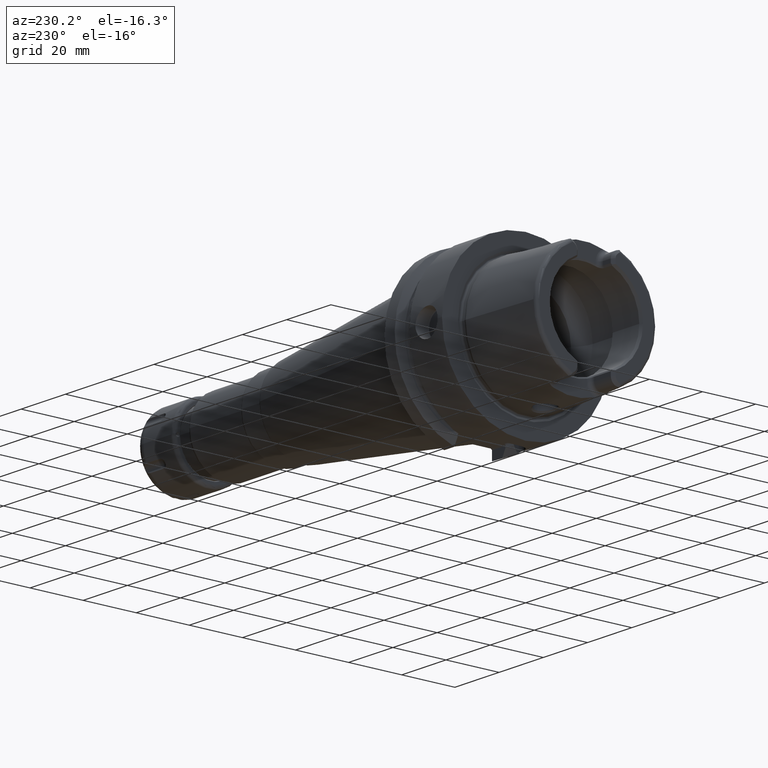
[diagram: clean part render]
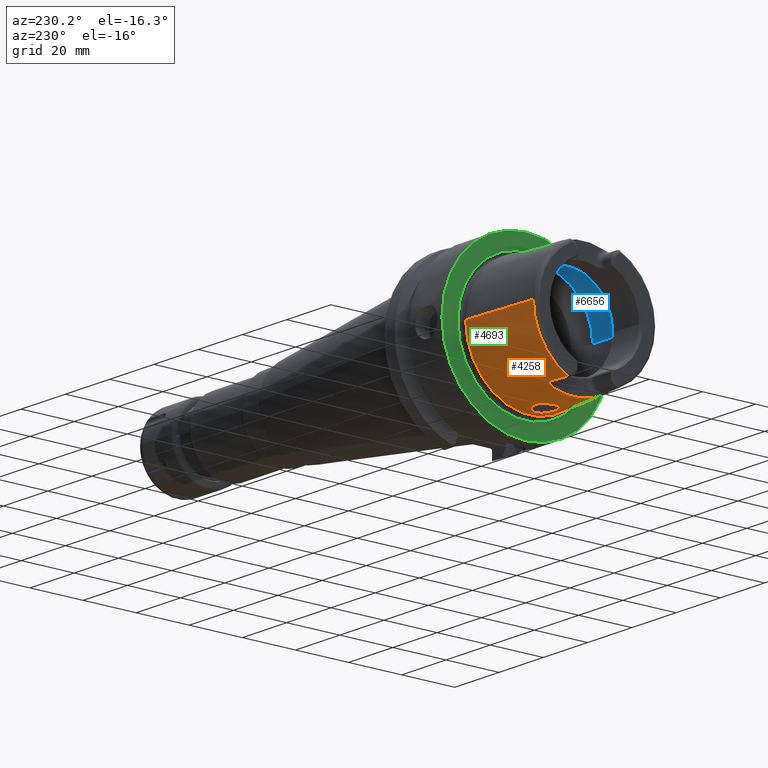
[diagram: same view with three faces highlighted in distinct colors, each labeled with its STEP entity id]
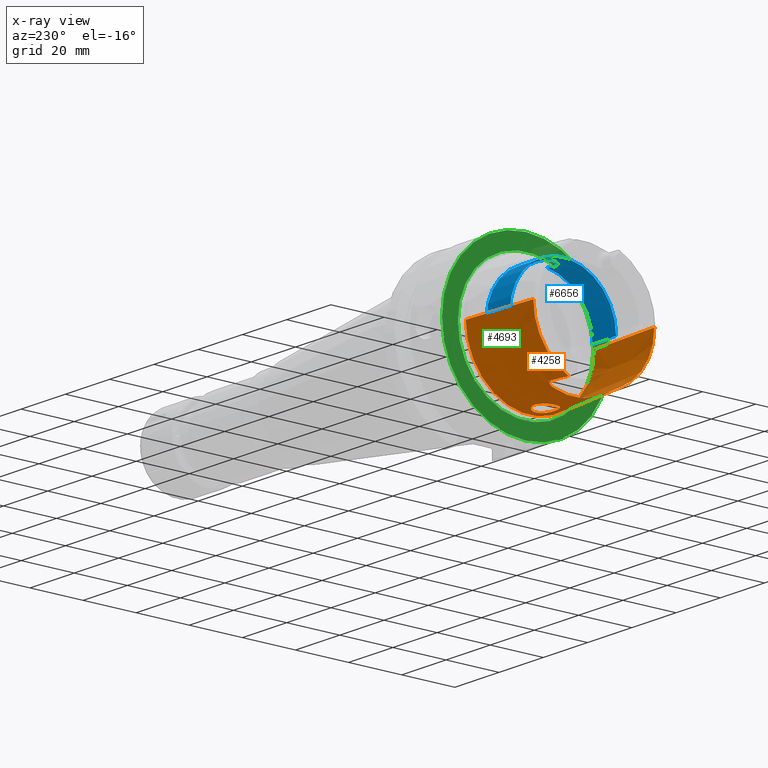
[diagram: x-ray of the same camera — body ghosted, the three highlighted faces saturated]
A machine part, auxiliary view with three faces highlighted in distinct colors.
The next image is the same camera in x-ray (body ghosted, the three faces saturated) — at least one of them is partly hidden behind the body in this view.
Their STEP definitions:

[orange] entity #4258 — the highlighted conical surface has half-angle 2.868 deg.
#172=CARTESIAN_POINT('',(-3.086004306431E1,9.562027931336E0,-2.067E1));
#180=CARTESIAN_POINT('',(-3.086004306431E1,0.E0,0.E0));
#181=DIRECTION('',(-1.E0,0.E0,0.E0));
#182=DIRECTION('',(0.E0,1.E0,0.E0));
#183=AXIS2_PLACEMENT_3D('',#180,#181,#182);
#266=CARTESIAN_POINT('',(-3.086004306431E1,0.E0,0.E0));
#267=DIRECTION('',(-1.E0,0.E0,0.E0));
#268=DIRECTION('',(0.E0,-4.198553792210E-1,-9.075910205259E-1));
#269=AXIS2_PLACEMENT_3D('',#266,#267,#268);
#715=CARTESIAN_POINT('',(-2.35E1,-1.040978349090E1,-2.067E1));
#716=CARTESIAN_POINT('',(-2.344355022851E1,-1.041607090076E1,-2.067E1));
#717=CARTESIAN_POINT('',(-2.332956993861E1,-1.041630964332E1,
-2.067627649687E1));
#718=CARTESIAN_POINT('',(-2.315431779142E1,-1.037517685704E1,
-2.070680447798E1));
#719=CARTESIAN_POINT('',(-2.298610382819E1,-1.029332142770E1,
-2.075709446100E1));
#720=CARTESIAN_POINT('',(-2.282168004898E1,-1.016791062235E1,
-2.082809580409E1));
#721=CARTESIAN_POINT('',(-2.266724538325E1,-9.999284585470E0,
-2.091827708343E1));
#722=CARTESIAN_POINT('',(-2.252949651780E1,-9.795860386621E0,
-2.102205159226E1));
#723=CARTESIAN_POINT('',(-2.240609239614E1,-9.556317791147E0,
-2.113897791639E1));
#724=CARTESIAN_POINT('',(-2.233295118151E1,-9.369771312934E0,
-2.122596447282E1));
#725=CARTESIAN_POINT('',(-2.229902715702E1,-9.27E0,-2.127129858661E1));
#732=CARTESIAN_POINT('',(-2.229902715702E1,-9.27E0,-2.127129858661E1));
#733=CARTESIAN_POINT('',(-2.223399395074E1,-9.078735889296E0,
-2.135820522042E1));
#734=CARTESIAN_POINT('',(-2.212138063131E1,-8.709703982970E0,
-2.151897497246E1));
#735=CARTESIAN_POINT('',(-2.202143095510E1,-8.195867731278E0,
-2.172483116732E1));
#736=CARTESIAN_POINT('',(-2.2E1,-7.876905772307E0,-2.184209600703E1));
#737=CARTESIAN_POINT('',(-2.2E1,-7.723914364163E0,-2.189606426911E1));
#744=CARTESIAN_POINT('',(-3.086004306431E1,9.562027931336E0,-2.067E1));
#745=CARTESIAN_POINT('',(-3.006933576531E1,9.656377942908E0,-2.067E1));
#746=CARTESIAN_POINT('',(-2.846987211493E1,9.844931102331E0,-2.067E1));
#747=CARTESIAN_POINT('',(-2.601704943476E1,1.012739619931E1,-2.067E1));
#748=CARTESIAN_POINT('',(-2.434508424921E1,1.031565749353E1,-2.067E1));
#749=CARTESIAN_POINT('',(-2.35E1,1.040978349090E1,-2.067E1));
#751=CARTESIAN_POINT('',(-2.2E1,0.E0,0.E0));
#752=DIRECTION('',(1.E0,0.E0,0.E0));
#753=DIRECTION('',(0.E0,-3.326627708379E-1,-9.430458530201E-1));
#754=AXIS2_PLACEMENT_3D('',#751,#752,#753);
#756=CARTESIAN_POINT('',(-2.35E1,-1.040978349090E1,-2.067E1));
#757=CARTESIAN_POINT('',(-2.434499363207E1,-1.031566758652E1,-2.067E1));
#758=CARTESIAN_POINT('',(-2.601683809497E1,-1.012742018211E1,-2.067E1));
#759=CARTESIAN_POINT('',(-2.846966522954E1,-9.844955281726E0,-2.067E1));
#760=CARTESIAN_POINT('',(-3.006924714753E1,-9.656388517097E0,-2.067E1));
#761=CARTESIAN_POINT('',(-3.086004306431E1,-9.562027931336E0,-2.067E1));
#763=DIRECTION('',(-9.987474205320E-1,5.003588692862E-2,0.E0));
#764=VECTOR('',#763,2.889623789861E1);
#765=CARTESIAN_POINT('',(-2.E0,-2.422042414966E1,0.E0));
#766=LINE('',#765,#764);
#767=CARTESIAN_POINT('',(-2.E0,0.E0,0.E0));
#768=DIRECTION('',(1.E0,0.E0,0.E0));
#769=DIRECTION('',(0.E0,-1.E0,0.E0));
#770=AXIS2_PLACEMENT_3D('',#767,#768,#769);
#772=DIRECTION('',(-9.987474205320E-1,-5.003588692862E-2,0.E0));
#773=VECTOR('',#772,2.889623789861E1);
#774=CARTESIAN_POINT('',(-2.E0,2.422042414966E1,0.E0));
#775=LINE('',#774,#773);
#776=CARTESIAN_POINT('',(-4.750586214018E0,5.673461659763E-9,
-2.408258339423E1));
#777=CARTESIAN_POINT('',(-4.750477437961E0,2.111411076152E-1,
-2.408258884376E1));
#778=CARTESIAN_POINT('',(-4.781495656806E0,6.343409338442E-1,
-2.407562144168E1));
#779=CARTESIAN_POINT('',(-4.930078657106E0,1.283914855647E0,-2.404224907910E1));
#780=CARTESIAN_POINT('',(-5.182634392381E0,1.908800454949E0,-2.398769888200E1));
#781=CARTESIAN_POINT('',(-5.529831450162E0,2.484539069761E0,-2.391697022480E1));
#782=CARTESIAN_POINT('',(-5.960551469368E0,2.995586150016E0,-2.383614077825E1));
#783=CARTESIAN_POINT('',(-6.473793439058E0,3.438507792172E0,-2.374982588457E1));
#784=CARTESIAN_POINT('',(-7.048787066123E0,3.792204015972E0,-2.366626747645E1));
#785=CARTESIAN_POINT('',(-7.671452269175E0,4.050490920343E0,-2.359141310307E1));
#786=CARTESIAN_POINT('',(-8.326498075054E0,4.207389863949E0,-2.353035449331E1));
#787=CARTESIAN_POINT('',(-8.996688113385E0,4.259622037115E0,-2.348674331493E1));
#788=CARTESIAN_POINT('',(-9.664449704733E0,4.206963769363E0,-2.346231724919E1));
#789=CARTESIAN_POINT('',(-1.031524077611E1,4.051442761029E0,-2.345681057565E1));
#790=CARTESIAN_POINT('',(-1.093485325951E1,3.796098039719E0,-2.346839797168E1));
#791=CARTESIAN_POINT('',(-1.150677686976E1,3.447081430360E0,-2.349368587605E1));
#792=CARTESIAN_POINT('',(-1.201610511114E1,3.013688514077E0,-2.352797212386E1));
#793=CARTESIAN_POINT('',(-1.245275273991E1,2.504280742997E0,-2.356616658718E1));
#794=CARTESIAN_POINT('',(-1.280634613041E1,1.927107192660E0,-2.360307496745E1));
#795=CARTESIAN_POINT('',(-1.306351718265E1,1.301776136825E0,-2.363325793045E1));
#796=CARTESIAN_POINT('',(-1.321667495617E1,6.483699009348E-1,
-2.365261938940E1));
#797=CARTESIAN_POINT('',(-1.324953338827E1,2.167159282651E-1,
-2.365680321669E1));
#798=CARTESIAN_POINT('',(-1.324940828071E1,6.149879737228E-9,
-2.365680948441E1));
#800=CARTESIAN_POINT('',(-1.324940828071E1,6.149879737228E-9,
-2.365680948441E1));
#801=CARTESIAN_POINT('',(-1.324953102801E1,-2.137481481882E-1,
-2.365680333493E1));
#802=CARTESIAN_POINT('',(-1.321763433537E1,-6.412975014817E-1,
-2.365274945467E1));
#803=CARTESIAN_POINT('',(-1.306535183772E1,-1.296633810944E0,
-2.363348136753E1));
#804=CARTESIAN_POINT('',(-1.280777805154E1,-1.924231879999E0,
-2.360323471178E1));
#805=CARTESIAN_POINT('',(-1.245640925213E1,-2.498853587660E0,
-2.356653312143E1));
#806=CARTESIAN_POINT('',(-1.202279775894E1,-3.007095564138E0,
-2.352849478770E1));
#807=CARTESIAN_POINT('',(-1.151012912941E1,-3.444950000041E0,
-2.349384632376E1));
#808=CARTESIAN_POINT('',(-1.093833543731E1,-3.794219313343E0,
-2.346852201482E1));
#809=CARTESIAN_POINT('',(-1.031975853695E1,-4.049996047184E0,
-2.345683414568E1));
#810=CARTESIAN_POINT('',(-9.668027880621E0,-4.206485188960E0,
-2.346222186835E1));
#811=CARTESIAN_POINT('',(-8.998732245580E0,-4.259676561364E0,
-2.348662929012E1));
#812=CARTESIAN_POINT('',(-8.327946517995E0,-4.207637743620E0,
-2.353023608986E1));
#813=CARTESIAN_POINT('',(-7.672280726344E0,-4.050816496641E0,
-2.359131552533E1));
#814=CARTESIAN_POINT('',(-7.048298445734E0,-3.792045808672E0,
-2.366632099982E1));
#815=CARTESIAN_POINT('',(-6.472887987830E0,-3.437795786313E0,
-2.374997505426E1));
#816=CARTESIAN_POINT('',(-5.960766318899E0,-2.995689730409E0,
-2.383610614678E1));
#817=CARTESIAN_POINT('',(-5.531187494687E0,-2.486290041474E0,
-2.391671147691E1));
#818=CARTESIAN_POINT('',(-5.183401261358E0,-1.910526594455E0,
-2.398753185570E1));
#819=CARTESIAN_POINT('',(-4.929997199649E0,-1.284003067748E0,
-2.404226458263E1));
#820=CARTESIAN_POINT('',(-4.781340780308E0,-6.332209723674E-1,
-2.407566103624E1));
#821=CARTESIAN_POINT('',(-4.750402434471E0,-2.105981632370E-1,
-2.408259260134E1));
#822=CARTESIAN_POINT('',(-4.750586214018E0,5.673461659763E-9,
-2.408258339423E1));
#832=CARTESIAN_POINT('',(-2.229902715702E1,9.27E0,-2.127129858661E1));
#833=CARTESIAN_POINT('',(-2.233311157770E1,9.370243041714E0,-2.122575012858E1));
#834=CARTESIAN_POINT('',(-2.240658425841E1,9.557497215840E0,-2.113842140416E1));
#835=CARTESIAN_POINT('',(-2.253041527230E1,9.797438074146E0,-2.102126542838E1));
#836=CARTESIAN_POINT('',(-2.266830373788E1,1.000064778809E1,-2.091756656395E1));
#837=CARTESIAN_POINT('',(-2.282373330426E1,1.017005110462E1,-2.082694270310E1));
#838=CARTESIAN_POINT('',(-2.299261366970E1,1.029790438197E1,-2.075446014923E1));
#839=CARTESIAN_POINT('',(-2.316533457542E1,1.037882348161E1,-2.070435505978E1));
#840=CARTESIAN_POINT('',(-2.333269177476E1,1.041609135758E1,-2.067621009348E1));
#841=CARTESIAN_POINT('',(-2.344467268621E1,1.041594588074E1,-2.067E1));
#842=CARTESIAN_POINT('',(-2.35E1,1.040978349090E1,-2.067E1));
#844=CARTESIAN_POINT('',(-2.2E1,7.723914364163E0,-2.189606426911E1));
#845=CARTESIAN_POINT('',(-2.2E1,7.876901135824E0,-2.184209764257E1));
#846=CARTESIAN_POINT('',(-2.202143124879E1,8.195856320393E0,-2.172483505793E1));
#847=CARTESIAN_POINT('',(-2.212136508173E1,8.709641843939E0,-2.151900085185E1));
#848=CARTESIAN_POINT('',(-2.223398514363E1,9.078709987396E0,-2.135821698973E1));
#849=CARTESIAN_POINT('',(-2.229902715702E1,9.27E0,-2.127129858661E1));
#2917=CARTESIAN_POINT('',(-2.E0,2.422042414966E1,0.E0));
#2918=CARTESIAN_POINT('',(-2.E0,-2.422042414966E1,0.E0));
#2919=VERTEX_POINT('',#2917);
#2920=VERTEX_POINT('',#2918);
#2921=CARTESIAN_POINT('',(-3.086004306431E1,2.277457525750E1,0.E0));
#2922=VERTEX_POINT('',#2921);
#2923=CARTESIAN_POINT('',(-3.086004306431E1,-2.277457525750E1,0.E0));
#2924=VERTEX_POINT('',#2923);
#3042=VERTEX_POINT('',#172);
#3044=CARTESIAN_POINT('',(-3.086004306431E1,-9.562027931336E0,-2.067E1));
#3045=VERTEX_POINT('',#3044);
#3048=CARTESIAN_POINT('',(-2.229902715702E1,-9.27E0,-2.127129858661E1));
#3050=VERTEX_POINT('',#3048);
#3051=VERTEX_POINT('',#737);
#3052=VERTEX_POINT('',#844);
#3053=VERTEX_POINT('',#849);
#3064=CARTESIAN_POINT('',(-2.35E1,-1.040978349090E1,-2.067E1));
#3065=VERTEX_POINT('',#3064);
#3066=CARTESIAN_POINT('',(-2.35E1,1.040978349090E1,-2.067E1));
#3067=VERTEX_POINT('',#3066);
#3132=VERTEX_POINT('',#776);
#3133=VERTEX_POINT('',#798);
#4228=CARTESIAN_POINT('',(-1.643002153216E1,0.E0,0.E0));
#4229=DIRECTION('',(1.E0,0.E0,0.E0));
#4230=DIRECTION('',(0.E0,-1.E0,0.E0));
#4231=AXIS2_PLACEMENT_3D('',#4228,#4229,#4230);
#4232=CONICAL_SURFACE('',#4231,2.349749970358E1,2.868042729042E0);
#4234=ORIENTED_EDGE('',*,*,#4233,.T.);
#4236=ORIENTED_EDGE('',*,*,#4235,.F.);
#4238=ORIENTED_EDGE('',*,*,#4237,.F.);
#4240=ORIENTED_EDGE('',*,*,#4239,.F.);
#4241=ORIENTED_EDGE('',*,*,#4218,.F.);
#4242=ORIENTED_EDGE('',*,*,#4207,.F.);
#4243=ORIENTED_EDGE('',*,*,#4194,.T.);
#4244=ORIENTED_EDGE('',*,*,#3597,.T.);
#4245=ORIENTED_EDGE('',*,*,#3455,.F.);
#4247=ORIENTED_EDGE('',*,*,#4246,.T.);
#4248=ORIENTED_EDGE('',*,*,#3451,.T.);
#4249=ORIENTED_EDGE('',*,*,#3569,.T.);
#4250=EDGE_LOOP('',(#4234,#4236,#4238,#4240,#4241,#4242,#4243,#4244,#4245,#4247,
#4248,#4249));
#4251=FACE_OUTER_BOUND('',#4250,.F.);
#4253=ORIENTED_EDGE('',*,*,#4252,.F.);
#4255=ORIENTED_EDGE('',*,*,#4254,.F.);
#4256=EDGE_LOOP('',(#4253,#4255));
#4257=FACE_BOUND('',#4256,.F.);
#4258=ADVANCED_FACE('',(#4251,#4257),#4232,.T.);
#184=CIRCLE('',#183,2.277457525750E1);
#270=CIRCLE('',#269,2.277457525750E1);
#726=B_SPLINE_CURVE_WITH_KNOTS('',3,(#715,#716,#717,#718,#719,#720,#721,#722,
#723,#724,#725),.UNSPECIFIED.,.F.,.F.,(4,1,1,1,1,1,1,1,4),(0.E0,1.25E-1,2.5E-1,
3.75E-1,5.E-1,6.25E-1,7.5E-1,8.75E-1,1.E0),.UNSPECIFIED.);
#738=B_SPLINE_CURVE_WITH_KNOTS('',3,(#732,#733,#734,#735,#736,#737),
.UNSPECIFIED.,.F.,.F.,(4,1,1,4),(0.E0,3.333333333333E-1,6.666666666667E-1,1.E0),
.UNSPECIFIED.);
#750=B_SPLINE_CURVE_WITH_KNOTS('',3,(#744,#745,#746,#747,#748,#749),
.UNSPECIFIED.,.F.,.F.,(4,1,1,4),(0.E0,3.333333333333E-1,6.666666666667E-1,1.E0),
.UNSPECIFIED.);
#755=CIRCLE('',#754,2.321845136054E1);
#762=B_SPLINE_CURVE_WITH_KNOTS('',3,(#756,#757,#758,#759,#760,#761),
.UNSPECIFIED.,.F.,.F.,(4,1,1,4),(0.E0,3.333333333333E-1,6.666666666667E-1,1.E0),
.UNSPECIFIED.);
#771=CIRCLE('',#770,2.422042414966E1);
#799=B_SPLINE_CURVE_WITH_KNOTS('',3,(#776,#777,#778,#779,#780,#781,#782,#783,
#784,#785,#786,#787,#788,#789,#790,#791,#792,#793,#794,#795,#796,#797,#798),
.UNSPECIFIED.,.F.,.F.,(4,1,1,1,1,1,1,1,1,1,1,1,1,1,1,1,1,1,1,1,4),(0.E0,5.E-2,
1.E-1,1.5E-1,2.E-1,2.5E-1,3.E-1,3.5E-1,4.E-1,4.5E-1,5.E-1,5.5E-1,6.E-1,6.5E-1,
7.E-1,7.5E-1,8.E-1,8.5E-1,9.E-1,9.5E-1,1.E0),.UNSPECIFIED.);
#823=B_SPLINE_CURVE_WITH_KNOTS('',3,(#800,#801,#802,#803,#804,#805,#806,#807,
#808,#809,#810,#811,#812,#813,#814,#815,#816,#817,#818,#819,#820,#821,#822),
.UNSPECIFIED.,.F.,.F.,(4,1,1,1,1,1,1,1,1,1,1,1,1,1,1,1,1,1,1,1,4),(0.E0,5.E-2,
1.E-1,1.5E-1,2.E-1,2.5E-1,3.E-1,3.5E-1,4.E-1,4.5E-1,5.E-1,5.5E-1,6.E-1,6.5E-1,
7.E-1,7.5E-1,8.E-1,8.5E-1,9.E-1,9.5E-1,1.E0),.UNSPECIFIED.);
#843=B_SPLINE_CURVE_WITH_KNOTS('',3,(#832,#833,#834,#835,#836,#837,#838,#839,
#840,#841,#842),.UNSPECIFIED.,.F.,.F.,(4,1,1,1,1,1,1,1,4),(0.E0,1.25E-1,2.5E-1,
3.75E-1,5.E-1,6.25E-1,7.5E-1,8.75E-1,1.E0),.UNSPECIFIED.);
#850=B_SPLINE_CURVE_WITH_KNOTS('',3,(#844,#845,#846,#847,#848,#849),
.UNSPECIFIED.,.F.,.F.,(4,1,1,4),(0.E0,3.333333333333E-1,6.666666666667E-1,1.E0),
.UNSPECIFIED.);
#3451=EDGE_CURVE('',#2919,#2922,#775,.T.);
#3455=EDGE_CURVE('',#2920,#2924,#766,.T.);
#3569=EDGE_CURVE('',#2922,#3042,#184,.T.);
#3597=EDGE_CURVE('',#3045,#2924,#270,.T.);
#4194=EDGE_CURVE('',#3065,#3045,#762,.T.);
#4207=EDGE_CURVE('',#3065,#3050,#726,.T.);
#4218=EDGE_CURVE('',#3050,#3051,#738,.T.);
#4233=EDGE_CURVE('',#3042,#3067,#750,.T.);
#4235=EDGE_CURVE('',#3053,#3067,#843,.T.);
#4237=EDGE_CURVE('',#3052,#3053,#850,.T.);
#4239=EDGE_CURVE('',#3051,#3052,#755,.T.);
#4246=EDGE_CURVE('',#2920,#2919,#771,.T.);
#4252=EDGE_CURVE('',#3132,#3133,#799,.T.);
#4254=EDGE_CURVE('',#3133,#3132,#823,.T.);

[blue] entity #6656 — the highlighted cylindrical surface (partial cylindrical patch) has radius 20 mm, axis along (1, 0, 0).
#2523=CARTESIAN_POINT('',(-6.344997998398E0,2.648294615690E0,1.982388800484E1));
#2525=CARTESIAN_POINT('',(-6.344997998398E0,-2.648294615690E0,
1.982388800484E1));
#2540=CARTESIAN_POINT('',(-6.344997998398E0,2.648294615690E0,1.982388800484E1));
#2541=CARTESIAN_POINT('',(-6.460596585787E0,2.764185981810E0,1.980840595204E1));
#2542=CARTESIAN_POINT('',(-6.705032526468E0,2.979236620594E0,1.977762997767E1));
#2543=CARTESIAN_POINT('',(-7.115707088008E0,3.254820950558E0,1.973390915713E1));
#2544=CARTESIAN_POINT('',(-7.558788067840E0,3.473550756710E0,1.969635481023E1));
#2545=CARTESIAN_POINT('',(-8.021221245910E0,3.630990626018E0,1.966777323779E1));
#2546=CARTESIAN_POINT('',(-8.506803393416E0,3.728808889512E0,1.964936004927E1));
#2547=CARTESIAN_POINT('',(-9.030555145845E0,3.763361449459E0,1.964272649975E1));
#2548=CARTESIAN_POINT('',(-9.606429583869E0,3.716513314942E0,1.965172145674E1));
#2549=CARTESIAN_POINT('',(-1.018737071400E1,3.573599882894E0,1.967844261791E1));
#2550=CARTESIAN_POINT('',(-1.073043578591E1,3.344031986540E0,1.971908086237E1));
#2551=CARTESIAN_POINT('',(-1.122924164708E1,3.034476069484E0,1.976949853857E1));
#2552=CARTESIAN_POINT('',(-1.167539523054E1,2.649612593318E0,1.982521182701E1));
#2553=CARTESIAN_POINT('',(-1.205589435788E1,2.199789113726E0,1.988058991308E1));
#2554=CARTESIAN_POINT('',(-1.236037157112E1,1.698335126266E0,1.993006117584E1));
#2555=CARTESIAN_POINT('',(-1.258308722480E1,1.156984185320E0,1.996912477874E1));
#2556=CARTESIAN_POINT('',(-1.271933931783E1,5.855799559107E-1,
1.999421727083E1));
#2557=CARTESIAN_POINT('',(-1.275E1,1.970790591689E-1,2.E1));
#2558=CARTESIAN_POINT('',(-1.275E1,0.E0,2.E1));
#2560=CARTESIAN_POINT('',(-6.344997998398E0,0.E0,0.E0));
#2561=DIRECTION('',(1.E0,0.E0,0.E0));
#2562=DIRECTION('',(0.E0,1.E0,0.E0));
#2563=AXIS2_PLACEMENT_3D('',#2560,#2561,#2562);
#2565=CARTESIAN_POINT('',(-6.344997998398E0,0.E0,0.E0));
#2566=DIRECTION('',(1.E0,0.E0,0.E0));
#2567=DIRECTION('',(0.E0,-1.324147307845E-1,9.911944002421E-1));
#2568=AXIS2_PLACEMENT_3D('',#2565,#2566,#2567);
#2570=CARTESIAN_POINT('',(-1.275E1,0.E0,2.E1));
#2571=CARTESIAN_POINT('',(-1.275E1,-1.955242925513E-1,2.E1));
#2572=CARTESIAN_POINT('',(-1.271982051521E1,-5.810761079055E-1,
1.999430841785E1));
#2573=CARTESIAN_POINT('',(-1.258557303883E1,-1.148512219472E0,
1.996957850985E1));
#2574=CARTESIAN_POINT('',(-1.236610647030E1,-1.686465533352E0,
1.993104432949E1));
#2575=CARTESIAN_POINT('',(-1.206568486343E1,-2.185767805005E0,
1.988212273505E1));
#2576=CARTESIAN_POINT('',(-1.169008850873E1,-2.634407568635E0,
1.982723415069E1));
#2577=CARTESIAN_POINT('',(-1.124927195009E1,-3.019358385751E0,
1.977181562270E1));
#2578=CARTESIAN_POINT('',(-1.075709032709E1,-3.329824405020E0,
1.972149412598E1));
#2579=CARTESIAN_POINT('',(-1.021949126442E1,-3.562609701439E0,
1.968045031109E1));
#2580=CARTESIAN_POINT('',(-9.641467361370E0,-3.710631949485E0,
1.965284251435E1));
#2581=CARTESIAN_POINT('',(-9.064366496245E0,-3.763073985501E0,
1.964278184632E1));
#2582=CARTESIAN_POINT('',(-8.536701772833E0,-3.732854425270E0,
1.964858745769E1));
#2583=CARTESIAN_POINT('',(-8.044881233754E0,-3.637565201588E0,
1.966655458906E1));
#2584=CARTESIAN_POINT('',(-7.575563176507E0,-3.480761658208E0,
1.969508217317E1));
#2585=CARTESIAN_POINT('',(-7.126022383363E0,-3.261082066667E0,
1.973288259674E1));
#2586=CARTESIAN_POINT('',(-6.709667549471E0,-2.983130387452E0,
1.977705858332E1));
#2587=CARTESIAN_POINT('',(-6.462043566692E0,-2.765636627510E0,
1.980821215871E1));
#2588=CARTESIAN_POINT('',(-6.344997998398E0,-2.648294615690E0,
1.982388800484E1));
#2635=DIRECTION('',(-1.E0,0.E0,0.E0));
#2636=VECTOR('',#2635,1.057256643630E1);
#2637=CARTESIAN_POINT('',(-6.344997998398E0,-2.E1,0.E0));
#2638=LINE('',#2637,#2636);
#2639=DIRECTION('',(-1.E0,0.E0,0.E0));
#2640=VECTOR('',#2639,1.057256643630E1);
#2641=CARTESIAN_POINT('',(-6.344997998398E0,2.E1,0.E0));
#2642=LINE('',#2641,#2640);
#2874=CARTESIAN_POINT('',(-1.691756443470E1,0.E0,0.E0));
#2875=DIRECTION('',(1.E0,0.E0,0.E0));
#2876=DIRECTION('',(0.E0,1.E0,0.E0));
#2877=AXIS2_PLACEMENT_3D('',#2874,#2875,#2876);
#2939=CARTESIAN_POINT('',(-6.344997998398E0,2.E1,0.E0));
#2940=VERTEX_POINT('',#2939);
#2941=CARTESIAN_POINT('',(-1.691756443470E1,2.E1,0.E0));
#2942=VERTEX_POINT('',#2941);
#2951=CARTESIAN_POINT('',(-6.344997998398E0,-2.E1,0.E0));
#2952=VERTEX_POINT('',#2951);
#2953=CARTESIAN_POINT('',(-1.691756443470E1,-2.E1,0.E0));
#2954=VERTEX_POINT('',#2953);
#3121=VERTEX_POINT('',#2523);
#3122=VERTEX_POINT('',#2525);
#3123=VERTEX_POINT('',#2558);
#6639=CARTESIAN_POINT('',(-3.41E1,0.E0,0.E0));
#6640=DIRECTION('',(1.E0,0.E0,0.E0));
#6641=DIRECTION('',(0.E0,-1.E0,0.E0));
#6642=AXIS2_PLACEMENT_3D('',#6639,#6640,#6641);
#6643=CYLINDRICAL_SURFACE('',#6642,2.E1);
#6644=ORIENTED_EDGE('',*,*,#6598,.F.);
#6645=ORIENTED_EDGE('',*,*,#6634,.F.);
#6647=ORIENTED_EDGE('',*,*,#6646,.T.);
#6649=ORIENTED_EDGE('',*,*,#6648,.T.);
#6651=ORIENTED_EDGE('',*,*,#6650,.F.);
#6652=ORIENTED_EDGE('',*,*,#6626,.F.);
#6653=ORIENTED_EDGE('',*,*,#6360,.F.);
#6654=EDGE_LOOP('',(#6644,#6645,#6647,#6649,#6651,#6652,#6653));
#6655=FACE_OUTER_BOUND('',#6654,.F.);
#6656=ADVANCED_FACE('',(#6655),#6643,.F.);
#2559=B_SPLINE_CURVE_WITH_KNOTS('',3,(#2540,#2541,#2542,#2543,#2544,#2545,#2546,
#2547,#2548,#2549,#2550,#2551,#2552,#2553,#2554,#2555,#2556,#2557,#2558),
.UNSPECIFIED.,.F.,.F.,(4,1,1,1,1,1,1,1,1,1,1,1,1,1,1,1,4),(0.E0,6.25E-2,1.25E-1,
1.875E-1,2.5E-1,3.125E-1,3.75E-1,4.375E-1,5.E-1,5.625E-1,6.25E-1,6.875E-1,
7.5E-1,8.125E-1,8.75E-1,9.375E-1,1.E0),.UNSPECIFIED.);
#2564=CIRCLE('',#2563,2.E1);
#2569=CIRCLE('',#2568,2.E1);
#2589=B_SPLINE_CURVE_WITH_KNOTS('',3,(#2570,#2571,#2572,#2573,#2574,#2575,#2576,
#2577,#2578,#2579,#2580,#2581,#2582,#2583,#2584,#2585,#2586,#2587,#2588),
.UNSPECIFIED.,.F.,.F.,(4,1,1,1,1,1,1,1,1,1,1,1,1,1,1,1,4),(0.E0,6.25E-2,1.25E-1,
1.875E-1,2.5E-1,3.125E-1,3.75E-1,4.375E-1,5.E-1,5.625E-1,6.25E-1,6.875E-1,
7.5E-1,8.125E-1,8.75E-1,9.375E-1,1.E0),.UNSPECIFIED.);
#2878=CIRCLE('',#2877,2.E1);
#6360=EDGE_CURVE('',#3123,#3122,#2589,.T.);
#6598=EDGE_CURVE('',#3121,#3123,#2559,.T.);
#6626=EDGE_CURVE('',#3122,#2952,#2569,.T.);
#6634=EDGE_CURVE('',#2940,#3121,#2564,.T.);
#6646=EDGE_CURVE('',#2940,#2942,#2642,.T.);
#6648=EDGE_CURVE('',#2942,#2954,#2878,.T.);
#6650=EDGE_CURVE('',#2952,#2954,#2638,.T.);

[green] entity #4693 — the highlighted planar face has unit normal (1, 0, 0).
#1068=CARTESIAN_POINT('',(-1.421085471520E-14,0.E0,0.E0));
#1069=DIRECTION('',(1.E0,0.E0,0.E0));
#1070=DIRECTION('',(0.E0,1.E0,0.E0));
#1071=AXIS2_PLACEMENT_3D('',#1068,#1069,#1070);
#1073=CARTESIAN_POINT('',(-1.421085471520E-14,0.E0,0.E0));
#1074=DIRECTION('',(-1.E0,0.E0,0.E0));
#1075=DIRECTION('',(0.E0,1.E0,0.E0));
#1076=AXIS2_PLACEMENT_3D('',#1073,#1074,#1075);
#1078=CARTESIAN_POINT('',(0.E0,0.E0,0.E0));
#1079=DIRECTION('',(-1.E0,0.E0,0.E0));
#1080=DIRECTION('',(0.E0,-1.E0,0.E0));
#1081=AXIS2_PLACEMENT_3D('',#1078,#1079,#1080);
#1083=CARTESIAN_POINT('',(0.E0,0.E0,0.E0));
#1084=DIRECTION('',(-1.E0,0.E0,0.E0));
#1085=DIRECTION('',(0.E0,1.E0,0.E0));
#1086=AXIS2_PLACEMENT_3D('',#1083,#1084,#1085);
#2897=CARTESIAN_POINT('',(-1.421085471520E-14,3.15E1,0.E0));
#2898=CARTESIAN_POINT('',(-1.421085471520E-14,-3.15E1,0.E0));
#2899=VERTEX_POINT('',#2897);
#2900=VERTEX_POINT('',#2898);
#2925=CARTESIAN_POINT('',(0.E0,-2.549042414966E1,0.E0));
#2926=VERTEX_POINT('',#2925);
#2927=CARTESIAN_POINT('',(0.E0,2.549042414966E1,0.E0));
#2928=VERTEX_POINT('',#2927);
#4678=CARTESIAN_POINT('',(0.E0,0.E0,0.E0));
#4679=DIRECTION('',(1.E0,0.E0,0.E0));
#4680=DIRECTION('',(0.E0,-1.E0,0.E0));
#4681=AXIS2_PLACEMENT_3D('',#4678,#4679,#4680);
#4682=PLANE('',#4681);
#4684=ORIENTED_EDGE('',*,*,#4683,.T.);
#4686=ORIENTED_EDGE('',*,*,#4685,.F.);
#4687=EDGE_LOOP('',(#4684,#4686));
#4688=FACE_OUTER_BOUND('',#4687,.F.);
#4689=ORIENTED_EDGE('',*,*,#4673,.T.);
#4690=ORIENTED_EDGE('',*,*,#4657,.T.);
#4691=EDGE_LOOP('',(#4689,#4690));
#4692=FACE_BOUND('',#4691,.F.);
#4693=ADVANCED_FACE('',(#4688,#4692),#4682,.F.);
#1072=CIRCLE('',#1071,3.15E1);
#1077=CIRCLE('',#1076,3.15E1);
#1082=CIRCLE('',#1081,2.549042414966E1);
#1087=CIRCLE('',#1086,2.549042414966E1);
#4657=EDGE_CURVE('',#2928,#2926,#1087,.T.);
#4673=EDGE_CURVE('',#2926,#2928,#1082,.T.);
#4683=EDGE_CURVE('',#2899,#2900,#1072,.T.);
#4685=EDGE_CURVE('',#2899,#2900,#1077,.T.);